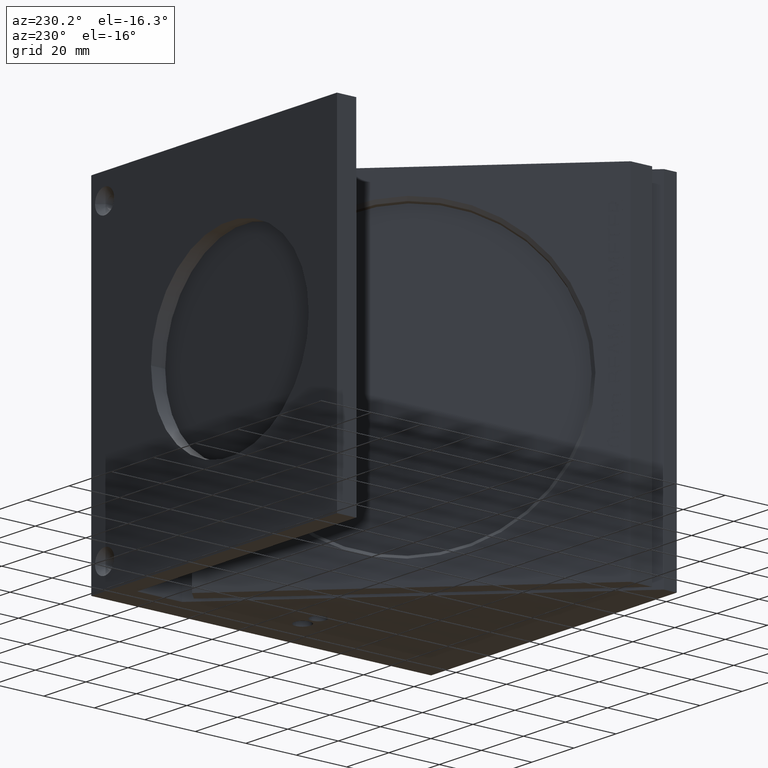
[diagram: clean part render]
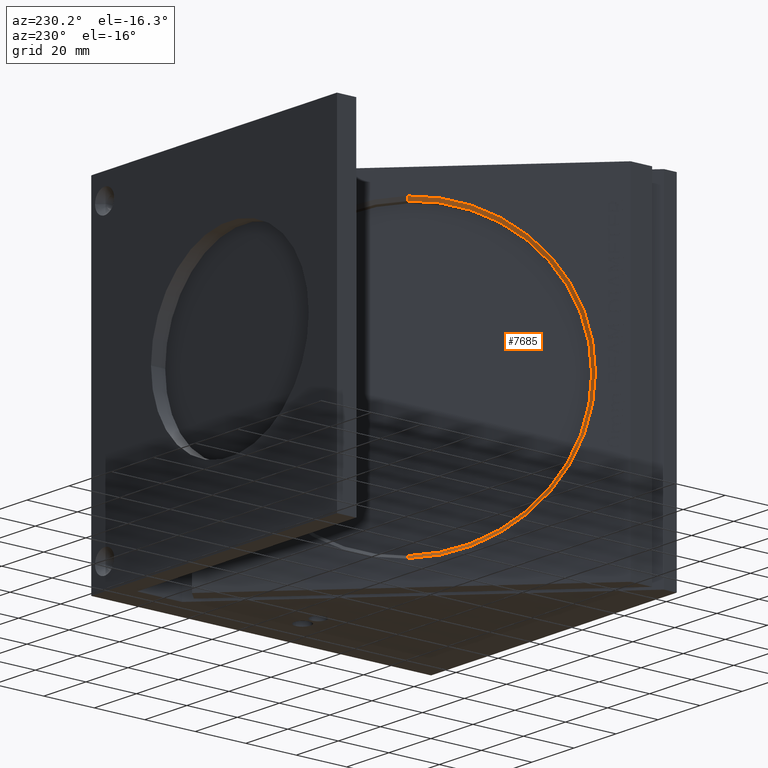
[diagram: same view with one face highlighted and labeled with its STEP entity id]
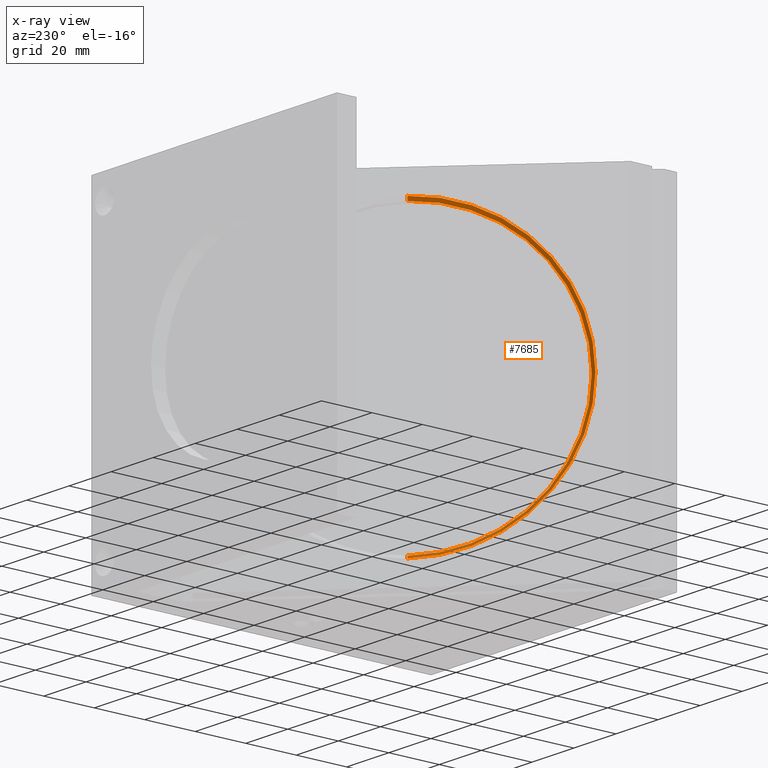
[diagram: x-ray of the same camera — body ghosted, the highlighted face saturated]
A machine part, auxiliary view. The second image highlights one B-rep face of the part: STEP entity #7685.
The next image is the same camera in x-ray: the body ghosted, the highlighted face saturated — about 0% of this face is hidden behind the body in this view.
In plain terms, the highlighted conical surface has half-angle 45 deg.
Its self-contained STEP definition (entity closure, byte-faithful):
#6136 = VERTEX_POINT ( 'NONE', #24048 ) ;
#6236 = VERTEX_POINT ( 'NONE', #24247 ) ;
#6239 = EDGE_CURVE ( 'NONE', #6136, #6242, #24246, .T. ) ;
#6242 = VERTEX_POINT ( 'NONE', #24242 ) ;
#6246 = VERTEX_POINT ( 'NONE', #24236 ) ;
#6249 = EDGE_CURVE ( 'NONE', #6236, #6246, #24234, .T. ) ;
#6875 = EDGE_CURVE ( 'NONE', #6242, #6246, #25433, .T. ) ;
#7632 = EDGE_CURVE ( 'NONE', #6236, #6136, #26601, .T. ) ;
#7685 = ADVANCED_FACE ( 'NONE', ( #26739 ), #26769, .F. ) ;
#7686 = EDGE_LOOP ( 'NONE', ( #7687, #7688, #7690, #7692 ) ) ;
#7687 = ORIENTED_EDGE ( 'NONE', *, *, #6239, .F. ) ;
#7688 = ORIENTED_EDGE ( 'NONE', *, *, #7632, .F. ) ;
#7690 = ORIENTED_EDGE ( 'NONE', *, *, #6249, .T. ) ;
#7692 = ORIENTED_EDGE ( 'NONE', *, *, #6875, .F. ) ;
#24048 = CARTESIAN_POINT ( 'NONE',  ( 1.118523584352590900, 2.447573802983376500, 4.838999999999999500 ) ) ;
#24231 = DIRECTION ( 'NONE',  ( -0.5000000000000013300, 0.4999999999999991100, -0.7071067811865472400 ) ) ;
#24232 = VECTOR ( 'NONE', #24231, 39.37007874015748100 ) ;
#24233 = CARTESIAN_POINT ( 'NONE',  ( 1.083168245293262900, 2.482929142042703300, 0.3609999999999997700 ) ) ;
#24234 = LINE ( 'NONE', #24233, #24232 ) ;
#24236 = CARTESIAN_POINT ( 'NONE',  ( 1.083168245293263400, 2.482929142042702900, 0.3610000000000003200 ) ) ;
#24242 = CARTESIAN_POINT ( 'NONE',  ( 1.083168245293263400, 2.482929142042703300, 4.888999999999999300 ) ) ;
#24243 = DIRECTION ( 'NONE',  ( -0.5000000000000011100, 0.4999999999999991700, 0.7071067811865473500 ) ) ;
#24244 = VECTOR ( 'NONE', #24243, 39.37007874015748100 ) ;
#24245 = CARTESIAN_POINT ( 'NONE',  ( 1.083168245293263800, 2.482929142042703300, 4.888999999999999300 ) ) ;
#24246 = LINE ( 'NONE', #24245, #24244 ) ;
#24247 = CARTESIAN_POINT ( 'NONE',  ( 1.118523584352590500, 2.447573802983375100, 0.4109999999999992500 ) ) ;
#25429 = DIRECTION ( 'NONE',  ( 1.809969960466605600E-016, 0.0000000000000000000, 1.000000000000000000 ) ) ;
#25430 = DIRECTION ( 'NONE',  ( 0.7071067811865490200, -0.7071067811865461300, 7.582389110198108000E-017 ) ) ;
#25431 = CARTESIAN_POINT ( 'NONE',  ( 1.083168245293263400, 2.482929142042703300, 2.624999999999999600 ) ) ;
#25432 = AXIS2_PLACEMENT_3D ( 'NONE', #25431, #25430, #25429 ) ;
#25433 = CIRCLE ( 'NONE', #25432, 2.263999999999999800 ) ;
#26598 = DIRECTION ( 'NONE',  ( 1.850845524162780100E-016, 1.233897016108520000E-016, 1.000000000000000000 ) ) ;
#26599 = DIRECTION ( 'NONE',  ( -0.7071067811865490200, 0.7071067811865461300, -7.582389110198108000E-017 ) ) ;
#26600 = AXIS2_PLACEMENT_3D ( 'NONE', #26607, #26599, #26598 ) ;
#26601 = CIRCLE ( 'NONE', #26600, 2.214000000000000000 ) ;
#26607 = CARTESIAN_POINT ( 'NONE',  ( 1.118523584352590900, 2.447573802983376000, 2.624999999999999600 ) ) ;
#26739 = FACE_OUTER_BOUND ( 'NONE', #7686, .T. ) ;
#26766 = DIRECTION ( 'NONE',  ( -1.809969960466605600E-016, 0.0000000000000000000, -1.000000000000000000 ) ) ;
#26767 = DIRECTION ( 'NONE',  ( -0.7071067811865490200, 0.7071067811865461300, -7.582389110198108000E-017 ) ) ;
#26768 = AXIS2_PLACEMENT_3D ( 'NONE', #26772, #26767, #26766 ) ;
#26769 = CONICAL_SURFACE ( 'NONE', #26768, 2.263999999999999800, 0.7853981633974482800 ) ;
#26772 = CARTESIAN_POINT ( 'NONE',  ( 1.083168245293263400, 2.482929142042703300, 2.624999999999999600 ) ) ;